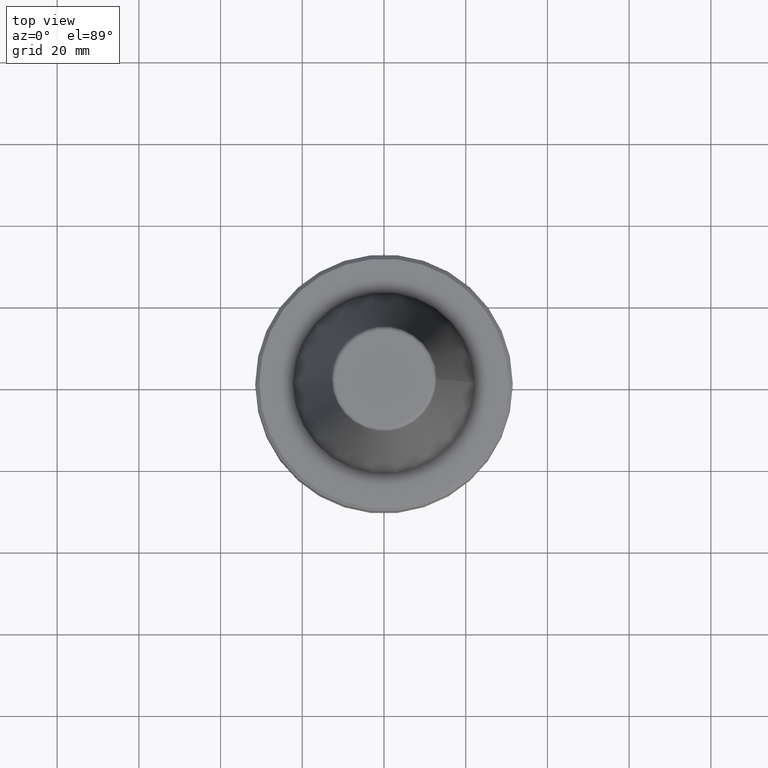
[diagram: clean part render]
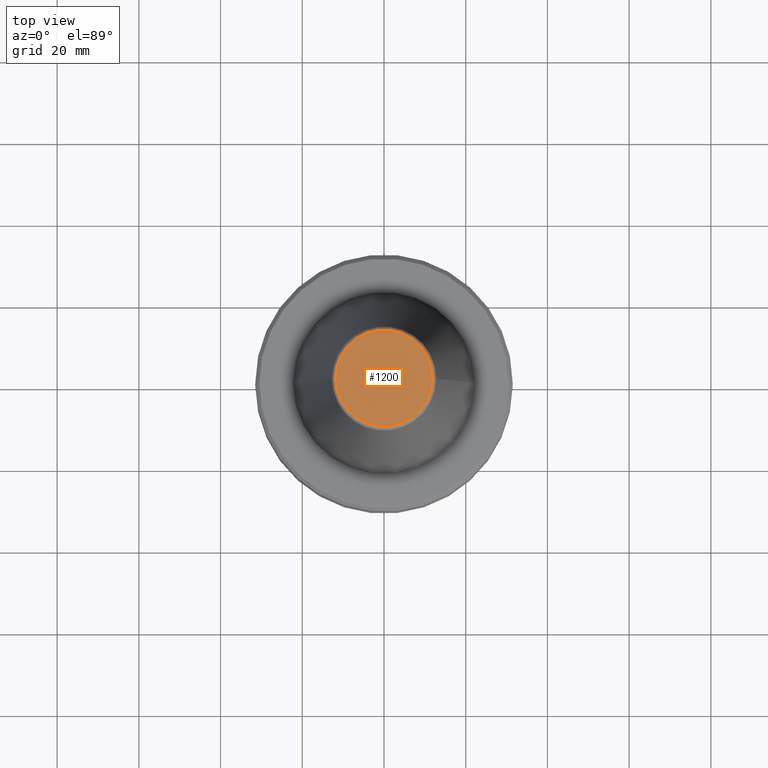
[diagram: same view with one face highlighted and labeled with its STEP entity id]
A machine part, top view. The second image highlights one B-rep face of the part: STEP entity #1200.
In plain terms, the highlighted planar face has unit normal (0, -0, 1).
Its self-contained STEP definition (entity closure, byte-faithful):
#61 = DIRECTION ( 'NONE',  ( -0.0000000000000000000, -0.0000000000000000000, 1.000000000000000000 ) ) ;
#74 = VERTEX_POINT ( 'NONE', #941 ) ;
#161 = FACE_OUTER_BOUND ( 'NONE', #1055, .T. ) ;
#288 = AXIS2_PLACEMENT_3D ( 'NONE', #525, #1216, #619 ) ;
#325 = DIRECTION ( 'NONE',  ( 1.000000000000000000, 0.0000000000000000000, 0.0000000000000000000 ) ) ;
#363 = EDGE_CURVE ( 'NONE', #519, #74, #611, .T. ) ;
#464 = EDGE_CURVE ( 'NONE', #74, #519, #1044, .T. ) ;
#519 = VERTEX_POINT ( 'NONE', #702 ) ;
#525 = CARTESIAN_POINT ( 'NONE',  ( 0.0000000000000000000, 0.0000000000000000000, 65.40000000000000600 ) ) ;
#539 = CARTESIAN_POINT ( 'NONE',  ( 0.0000000000000000000, 0.0000000000000000000, 65.40000000000000600 ) ) ;
#611 = CIRCLE ( 'NONE', #288, 11.82266672057007100 ) ;
#619 = DIRECTION ( 'NONE',  ( 1.000000000000000000, 0.0000000000000000000, 0.0000000000000000000 ) ) ;
#637 = DIRECTION ( 'NONE',  ( 1.000000000000000000, 0.0000000000000000000, 0.0000000000000000000 ) ) ;
#656 = CARTESIAN_POINT ( 'NONE',  ( 0.0000000000000000000, 0.0000000000000000000, 65.40000000000000600 ) ) ;
#702 = CARTESIAN_POINT ( 'NONE',  ( 11.82266672057007100, 0.0000000000000000000, 65.40000000000000600 ) ) ;
#715 = ORIENTED_EDGE ( 'NONE', *, *, #363, .T. ) ;
#873 = AXIS2_PLACEMENT_3D ( 'NONE', #539, #1230, #637 ) ;
#879 = AXIS2_PLACEMENT_3D ( 'NONE', #656, #61, #325 ) ;
#941 = CARTESIAN_POINT ( 'NONE',  ( -11.82266672057007100, 1.508450503654657300E-015, 65.40000000000000600 ) ) ;
#1023 = PLANE ( 'NONE',  #873 ) ;
#1044 = CIRCLE ( 'NONE', #879, 11.82266672057007100 ) ;
#1055 = EDGE_LOOP ( 'NONE', ( #715, #1114 ) ) ;
#1114 = ORIENTED_EDGE ( 'NONE', *, *, #464, .T. ) ;
#1200 = ADVANCED_FACE ( 'NONE', ( #161 ), #1023, .T. ) ;
#1216 = DIRECTION ( 'NONE',  ( -0.0000000000000000000, -0.0000000000000000000, 1.000000000000000000 ) ) ;
#1230 = DIRECTION ( 'NONE',  ( 0.0000000000000000000, -0.0000000000000000000, 1.000000000000000000 ) ) ;